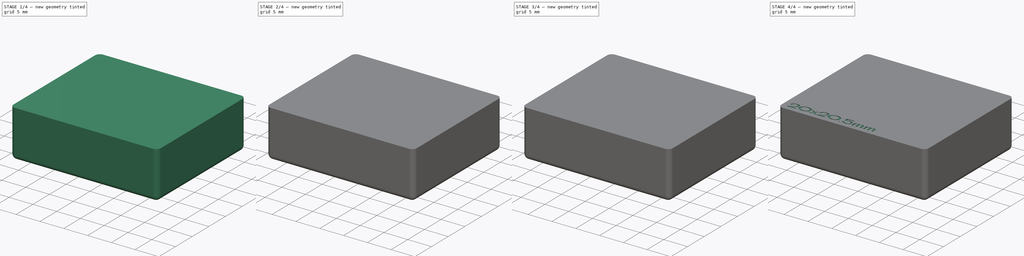
[diagram: build sequence overview — one tinted view per stage of 4, left to right]
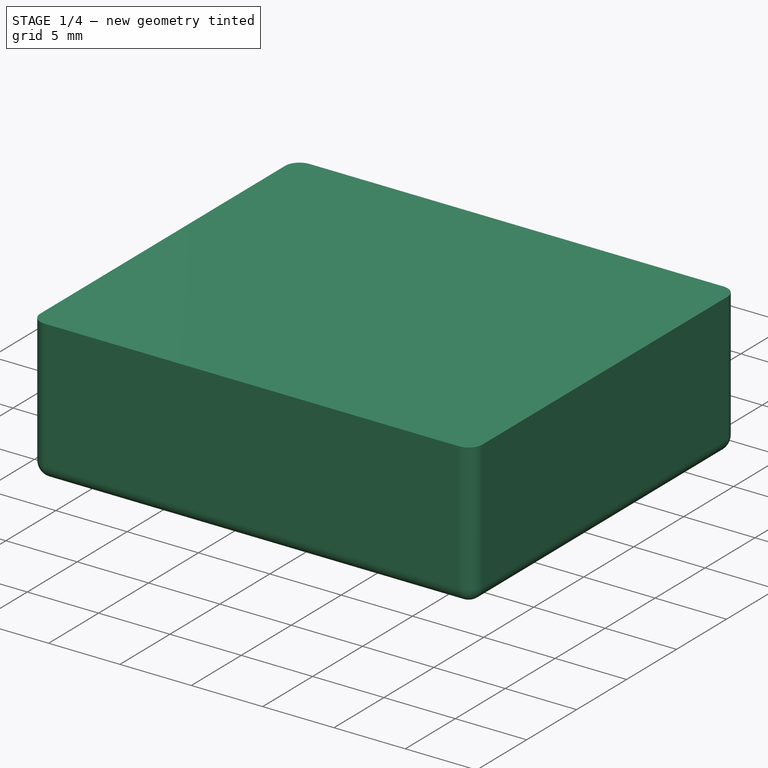
[diagram: stage 1 of 4 — iso view after this stage's code; geometry added in this stage tinted green]
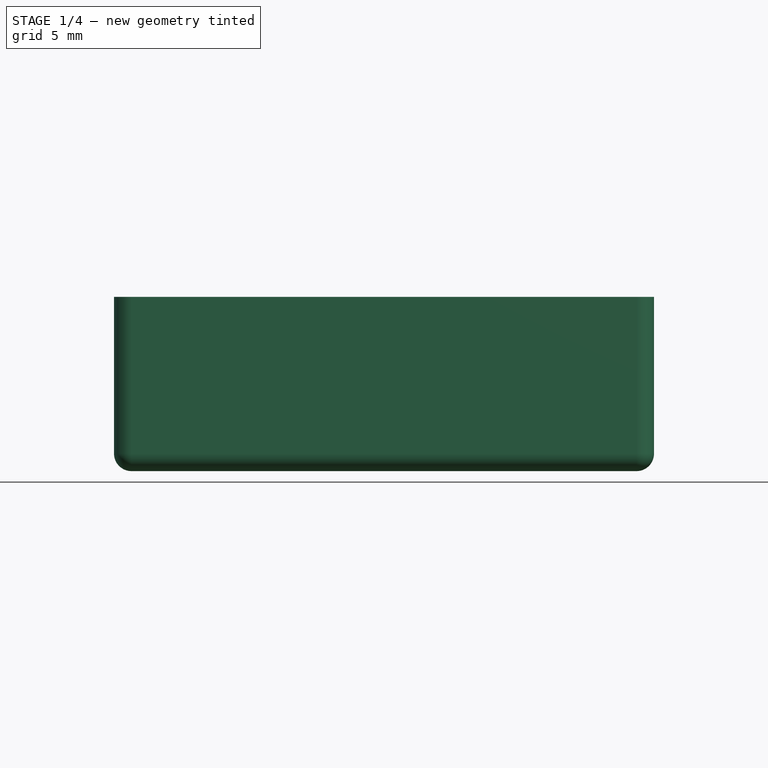
[diagram: stage 1 of 4 — front view after this stage's code; geometry added in this stage tinted green]
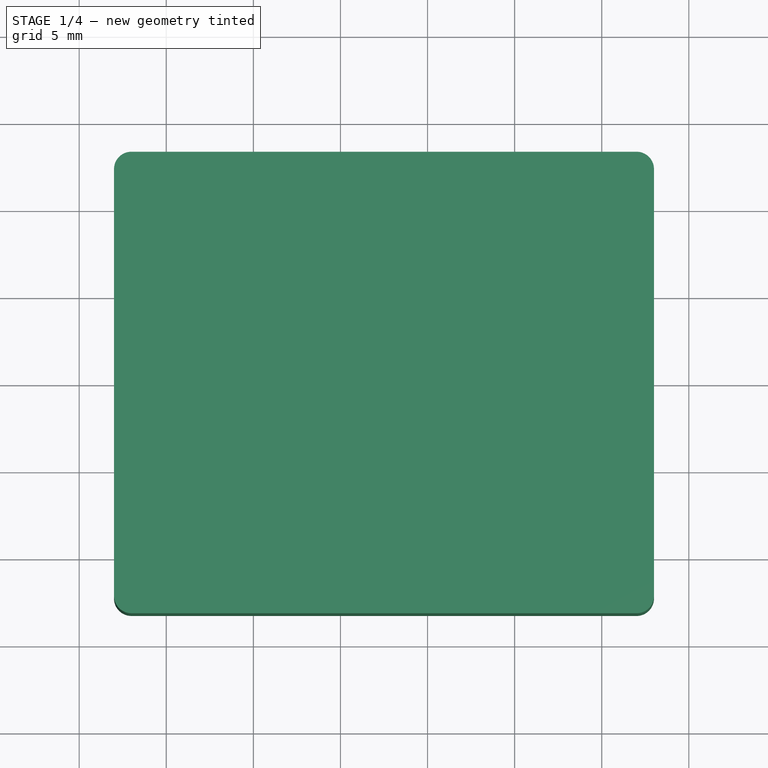
[diagram: stage 1 of 4 — top view after this stage's code; geometry added in this stage tinted green]
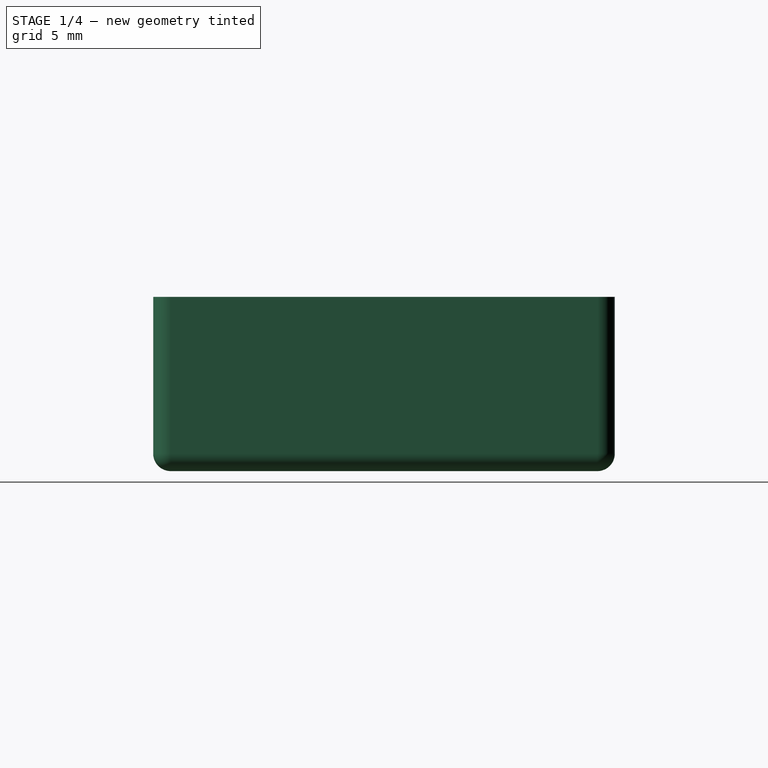
[diagram: stage 1 of 4 — right view after this stage's code; geometry added in this stage tinted green]
FCSTD DOCUMENT  (FreeCAD 0.16R6706 (Git))
Label: Mold_negative2
License: All rights reserved
LicenseURL: http://en.wikipedia.org/wiki/All_rights_reserved
objects: Part::Fillet×4, Sketcher::SketchObject×3, Part::Extrusion×3, Spreadsheet::Sheet×1, Part::MultiFuse×1, Part::Box×1, Part::Cut×1, Part::Part2DObjectPython×1, PartDesign::Pocket×1
note: 16 computed .brp shape members not serialized (recipe doc carries the construction recipe); baked Part::Feature solids carry a one-line shape summary decoded from their .brp

FEATURE [Sketcher::SketchObject] Sketch001
  expr: Constraints[11] = Spreadsheet.right_length + Spreadsheet.length / 2
  expr: Constraints[8] = Spreadsheet.right_width
  sketch-geometry (4):
    g0: LineSegment StartX=-10 StartY=6.75 StartZ=0 EndX=0 EndY=6.75 EndZ=0
    g1: LineSegment StartX=0 StartY=6.75 StartZ=0 EndX=0 EndY=-6.75 EndZ=0
    g2: LineSegment StartX=0 StartY=-6.75 StartZ=0 EndX=-10 EndY=-6.75 EndZ=0
    g3: LineSegment StartX=-10 StartY=-6.75 StartZ=0 EndX=-10 EndY=6.75 EndZ=0
  constraints (12):
    c: Coincident(g0,g1)
    c: Coincident(g1,g2)
    c: Coincident(g2,g3)
    c: Coincident(g3,g0)
    c: Horizontal(g0)
    c: Horizontal(g2)
    c: Vertical(g1)
    c: Vertical(g3)
    c: DistanceY(g2,g0) = 13.5
    c: Symmetric(g2,g0,g-1)
    c: DistanceX(g0,g-1) = 0
    c: DistanceX(g2,g1) = 10
FEATURE [Part::Extrusion] Extrude001
  Base = -> Sketch001
  Dir = (0,0,8)
  Solid = true
  TaperAngle = -5
  expr: TaperAngle = Spreadsheet.taper
  expr: Dir.z = Spreadsheet.height
FEATURE [Part::Box] Box  label="Cube"
  Height = 10
  Length = 31
  Placement = pos=(-13,-13.25,0) rot=(0,0,1;0rad)
  Width = 26.5
  expr: Placement.Base.y = -data.width / 2 - data.wall_thickness
  expr: Placement.Base.x = -data.length / 2 - data.wall_thickness
  expr: Height = data.height + 2
  expr: Width = data.width + 2 * data.wall_thickness
  expr: Length = data.length + data.left_length + 2 * data.wall_thickness
FEATURE [Part::Fillet] Fillet003
  Base = -> Box
  Edges = 8 edges r=1: [Edge1,Edge3,Edge4,Edge5,Edge7,Edge8,Edge9,Edge11]
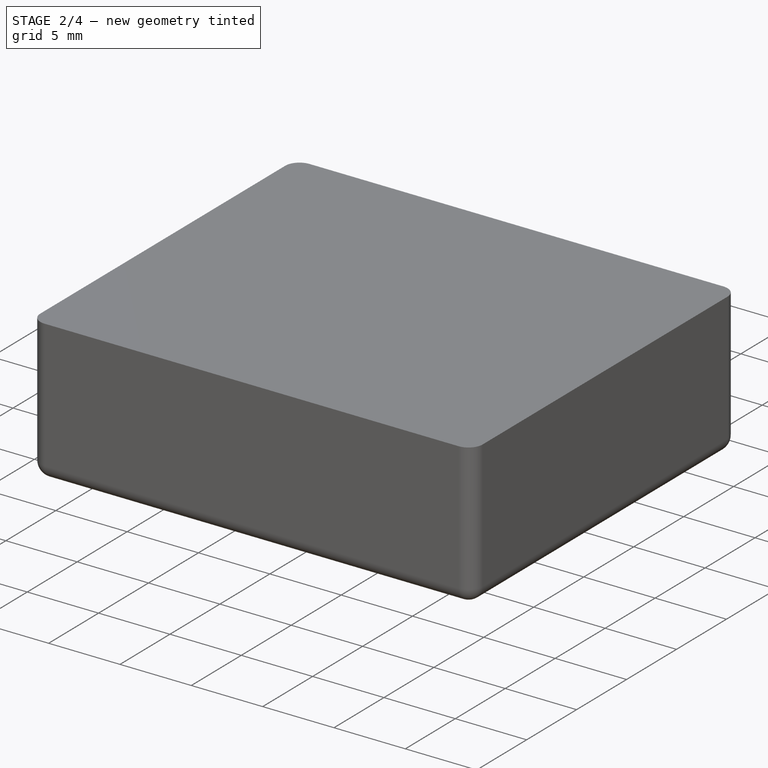
[diagram: stage 2 of 4 — iso view after this stage's code; geometry added in this stage tinted green]
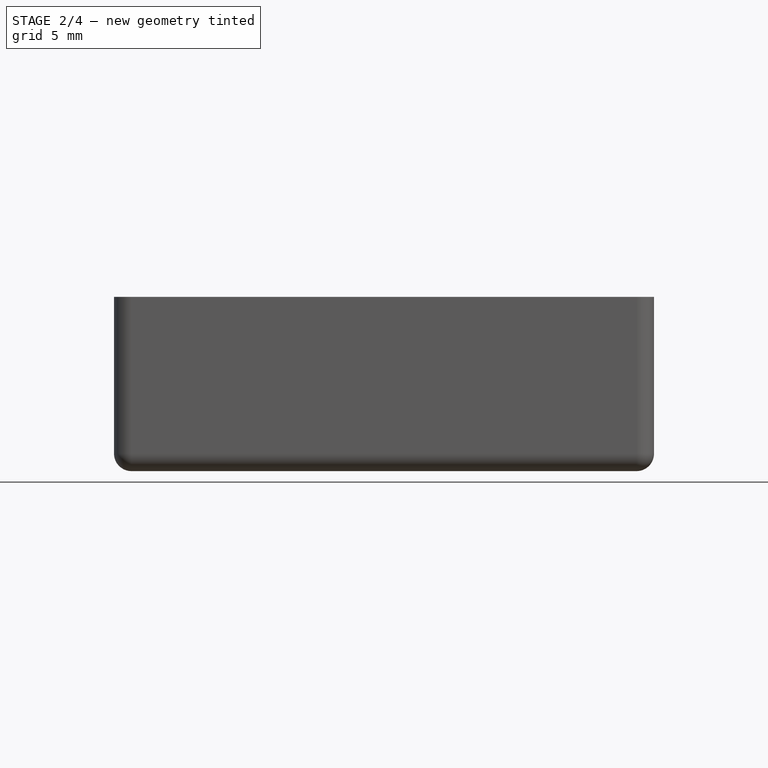
[diagram: stage 2 of 4 — front view after this stage's code; geometry added in this stage tinted green]
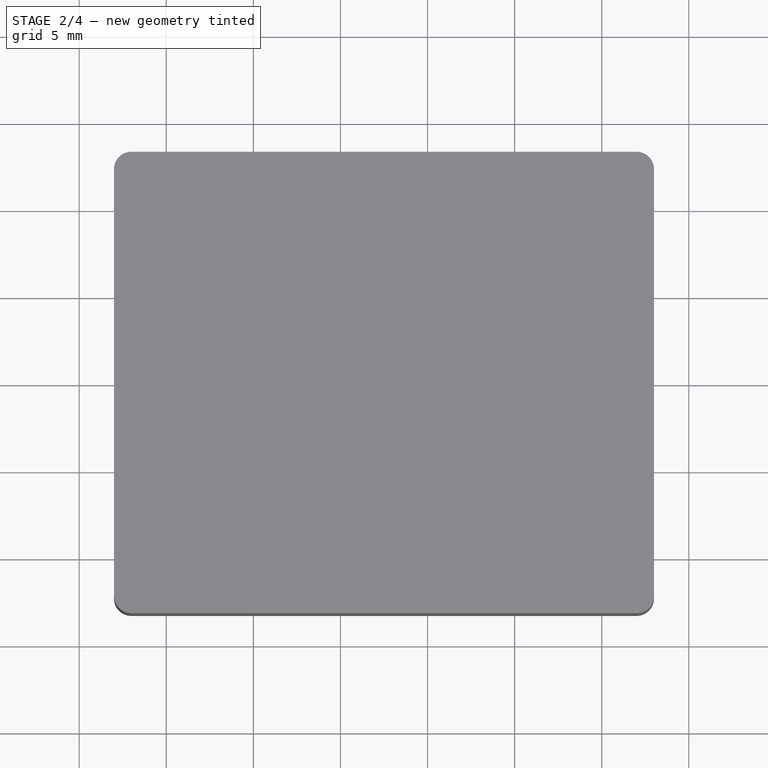
[diagram: stage 2 of 4 — top view after this stage's code; geometry added in this stage tinted green]
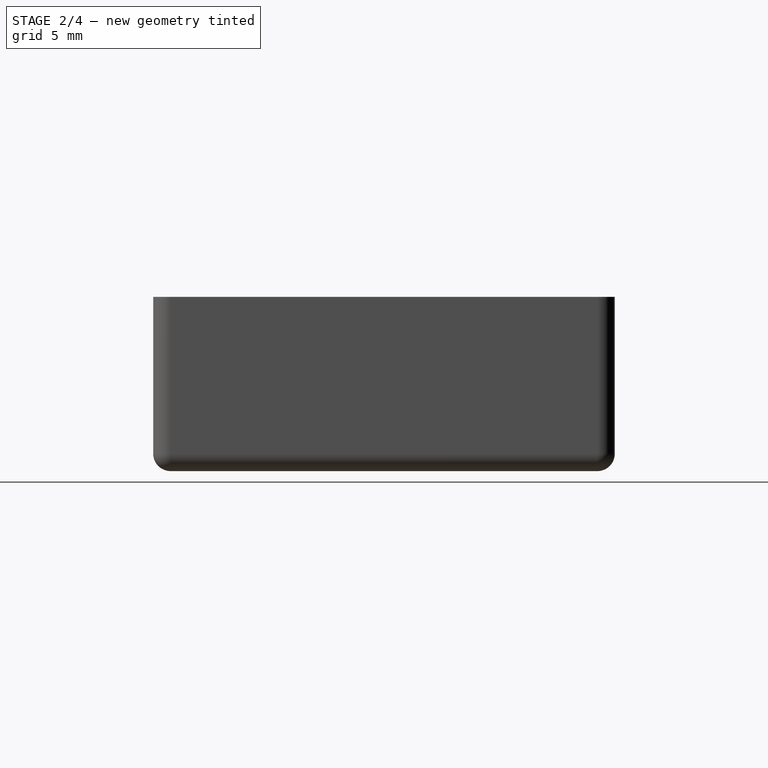
[diagram: stage 2 of 4 — right view after this stage's code; geometry added in this stage tinted green]
FEATURE [Sketcher::SketchObject] Sketch
  expr: Constraints[9] = Spreadsheet.width
  expr: Constraints[8] = Spreadsheet.length
  sketch-geometry (4):
    g0: LineSegment StartX=-10 StartY=10.25 StartZ=0 EndX=10 EndY=10.25 EndZ=0
    g1: LineSegment StartX=10 StartY=10.25 StartZ=0 EndX=10 EndY=-10.25 EndZ=0
    g2: LineSegment StartX=10 StartY=-10.25 StartZ=0 EndX=-10 EndY=-10.25 EndZ=0
    g3: LineSegment StartX=-10 StartY=-10.25 StartZ=0 EndX=-10 EndY=10.25 EndZ=0
  constraints (12):
    c: Coincident(g0,g1)
    c: Coincident(g1,g2)
    c: Coincident(g2,g3)
    c: Coincident(g3,g0)
    c: Horizontal(g0)
    c: Horizontal(g2)
    c: Vertical(g1)
    c: Vertical(g3)
    c: DistanceX(g0,g0) = 20
    c: DistanceY(g2,g0) = 20.5
    c: Symmetric(g0,g0,g-2)
    c: Symmetric(g0,g2,g-1)
FEATURE [Part::Extrusion] Extrude
  Base = -> Sketch
  Dir = (0,0,8)
  Solid = true
  TaperAngle = -5
  expr: TaperAngle = Spreadsheet.taper
  expr: Dir.z = Spreadsheet.height
FEATURE [Part::Fillet] Fillet001
  Base = -> Extrude
  Edges = 8 edges r=1: [Edge2,Edge3,Edge4,Edge6,Edge7,Edge9,Edge10,Edge12]
FEATURE [Part::Fillet] Fillet002
  Base = -> Extrude001
  Edges = 5 edges r=1: [Edge3,Edge4,Edge9,Edge10,Edge12]
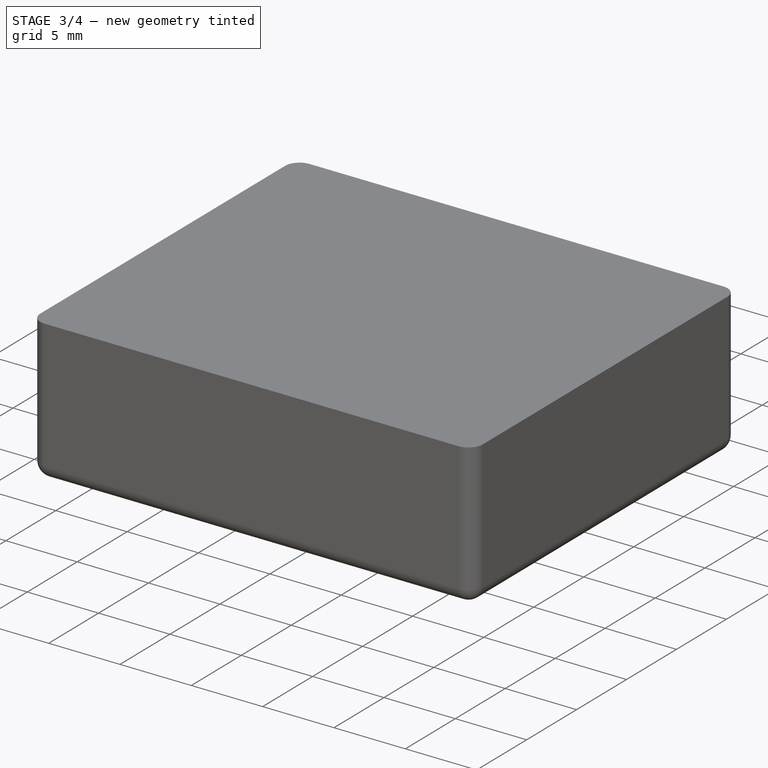
[diagram: stage 3 of 4 — iso view after this stage's code; geometry added in this stage tinted green]
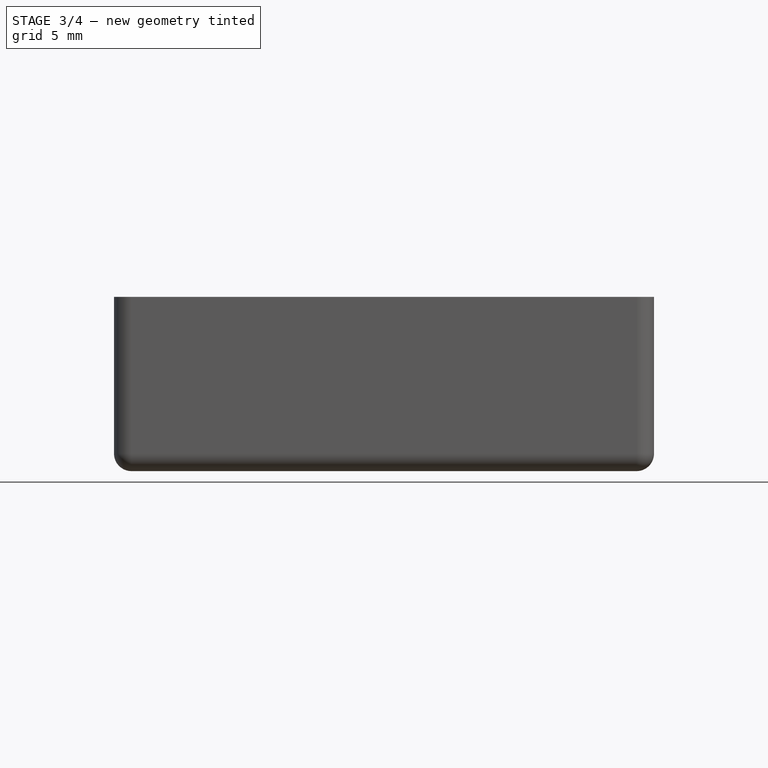
[diagram: stage 3 of 4 — front view after this stage's code; geometry added in this stage tinted green]
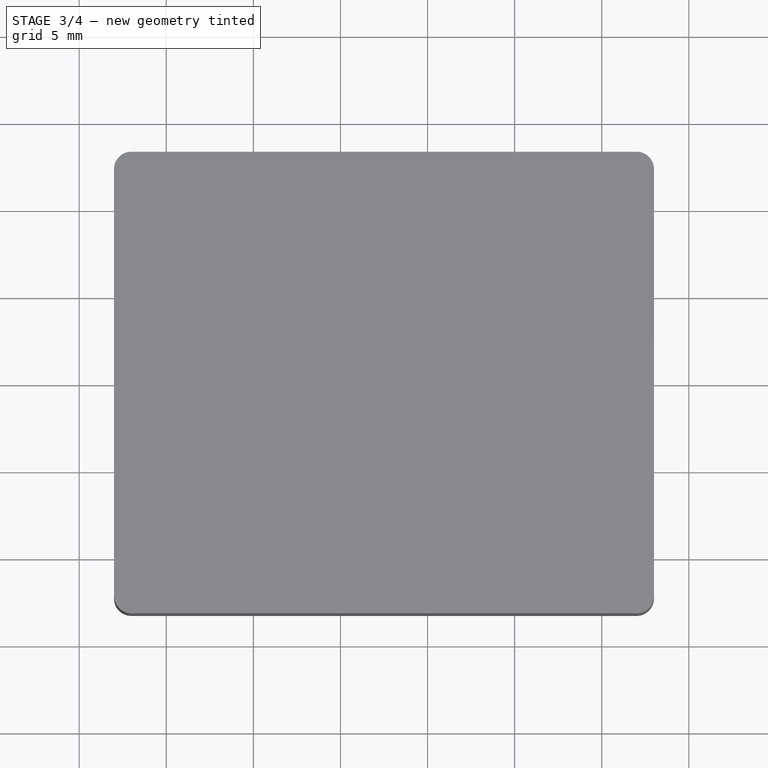
[diagram: stage 3 of 4 — top view after this stage's code; geometry added in this stage tinted green]
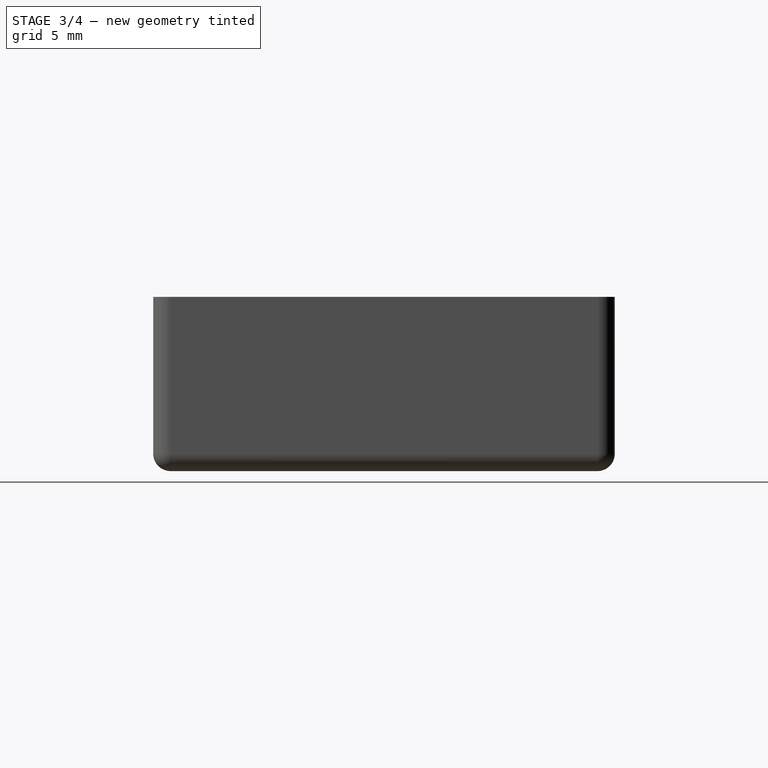
[diagram: stage 3 of 4 — right view after this stage's code; geometry added in this stage tinted green]
FEATURE [Sketcher::SketchObject] Sketch002
  expr: Constraints[11] = Spreadsheet.left_length + Spreadsheet.length / 2
  expr: Constraints[10] = Spreadsheet.right_width
  sketch-geometry (4):
    g0: LineSegment StartX=0 StartY=6.75 StartZ=0 EndX=15 EndY=6.75 EndZ=0
    g1: LineSegment StartX=15 StartY=6.75 StartZ=0 EndX=15 EndY=-6.75 EndZ=0
    g2: LineSegment StartX=15 StartY=-6.75 StartZ=0 EndX=0 EndY=-6.75 EndZ=0
    g3: LineSegment StartX=0 StartY=-6.75 StartZ=0 EndX=0 EndY=6.75 EndZ=0
  constraints (12):
    c: Coincident(g0,g1)
    c: Coincident(g1,g2)
    c: Coincident(g2,g3)
    c: Coincident(g3,g0)
    c: Horizontal(g0)
    c: Horizontal(g2)
    c: Vertical(g1)
    c: Vertical(g3)
    c: PointOnObject(g0,g-2)
    c: Symmetric(g0,g1,g-1)
    c: DistanceY(g1,g0) = 13.5
    c: DistanceX(g0,g0) = 15
FEATURE [Part::Extrusion] Extrude004
  Base = -> Sketch002
  Dir = (0,0,8)
  Solid = true
  TaperAngle = -5
  expr: TaperAngle = Spreadsheet.taper
  expr: Dir.z = Spreadsheet.height
FEATURE [Spreadsheet::Sheet] Spreadsheet  label="data"
  cells = A1=taper; B1(taper)=-5; H1=-0.5; A2=height; B2(height)=8; D2=5; E2=5; G2=6; H2=10; A3=length; B3(length)==20mm; D3==27.5mm; E3==29mm; F3==29mm; G3==31mm; H3==26mm; I3==20mm; J3==20mm; K3==20mm; L3==26.5mm; M3==22.5mm; A4=width; B4(width)==20.5mm; D4==21.5mm; E4==21mm; F4==21mm; G4==22mm; H4==25.5mm; I4==22.5mm; J4==22.5mm; K4==20.5mm; L4==20.5mm; M4==18mm; A5=left_length; B5(left_length)==5mm; D5==4mm; E5==4mm; F5==4mm; G5==5mm; H5==5mm; I5==3mm; J5==3mm; K5==5mm; L5==5mm; M5==7mm; A6=left_width; B6(left_width)==13mm; D6==14.5mm; E6==13mm; F6==13mm; G6==13.5mm; H6==13.5mm; I6==12.5mm; J6==12.5mm; K6==13mm; L6==11.5mm; M6==11.5mm; A7=right_length; B7(right_length)==0mm; D7==4mm; E7==0mm; F7==4mm; G7==5mm; H7==0mm; I7==0mm; J7==0mm; K7==0mm; L7==0mm; A8=right_width; B8(right_width)==13.5mm; D8==14.5mm; E8==13mm; F8==13mm; G8==13.5mm; A9=hole_offset; B9(hole_offset)==27mm; D9==27mm; E9==27mm; F9==17mm; G9==27mm; A10=wall_thickness; B10(wall_thickness)==3mm; D10=Boss 302; E10=Kia wo; F10=Kia w; G10=Grand Cross; H10=Urus; I10=Charger; J10=Impala; K10=84 Audi Quattro; L10=Demon; M10=55 Nomad; C11=volume; D11=3.48; E11=3.31; F11=3.51; G11=5.82; C12=density; D12=7.28; E12=7.28; F12=7.28; G12=7.28; C13=mass; D13==D12 * D11; E13==E12 * E11; F13==F12 * F11; G13==G12 * G11; E15=3.11; D16=34.9g stock; E16=7.28; D17==60 - 34.9; E17==E16 * E15; D18==25 - 16.5
FEATURE [Part::Fillet] Fillet
  Base = -> Extrude004
  Edges = 5 edges r=1: [Edge2,Edge3,Edge6,Edge7,Edge10]
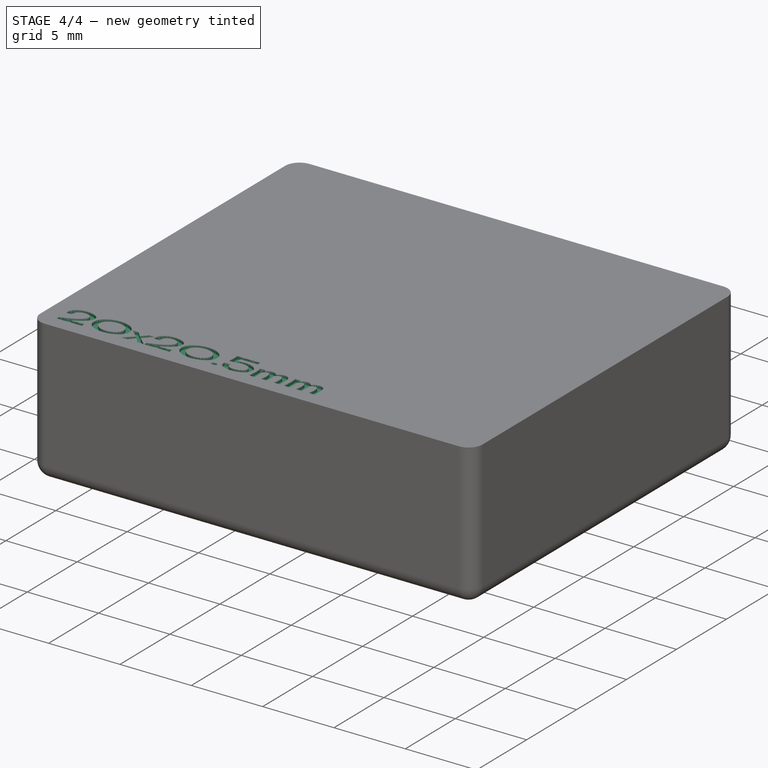
[diagram: stage 4 of 4 — iso view after this stage's code; geometry added in this stage tinted green]
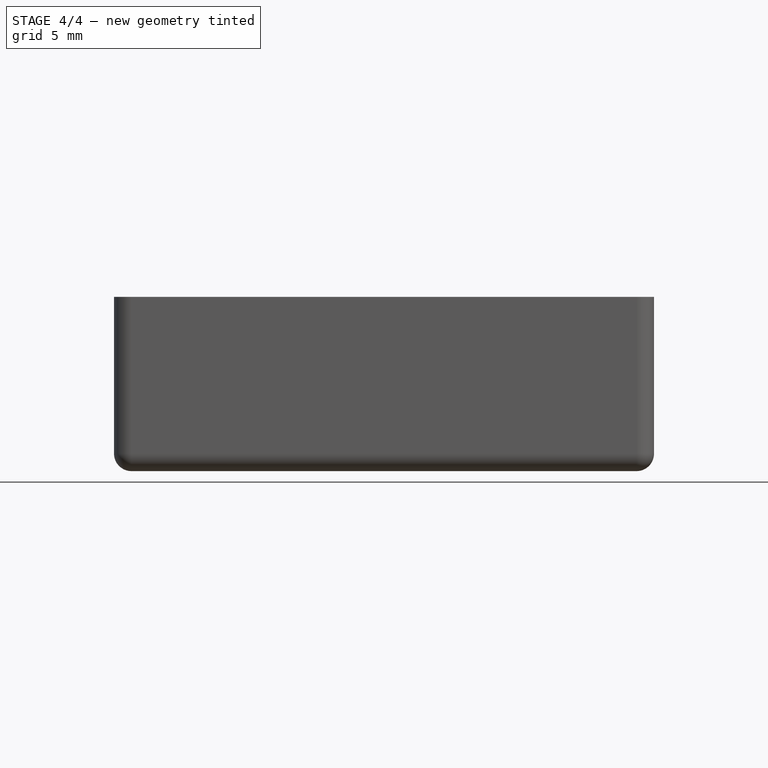
[diagram: stage 4 of 4 — front view after this stage's code; geometry added in this stage tinted green]
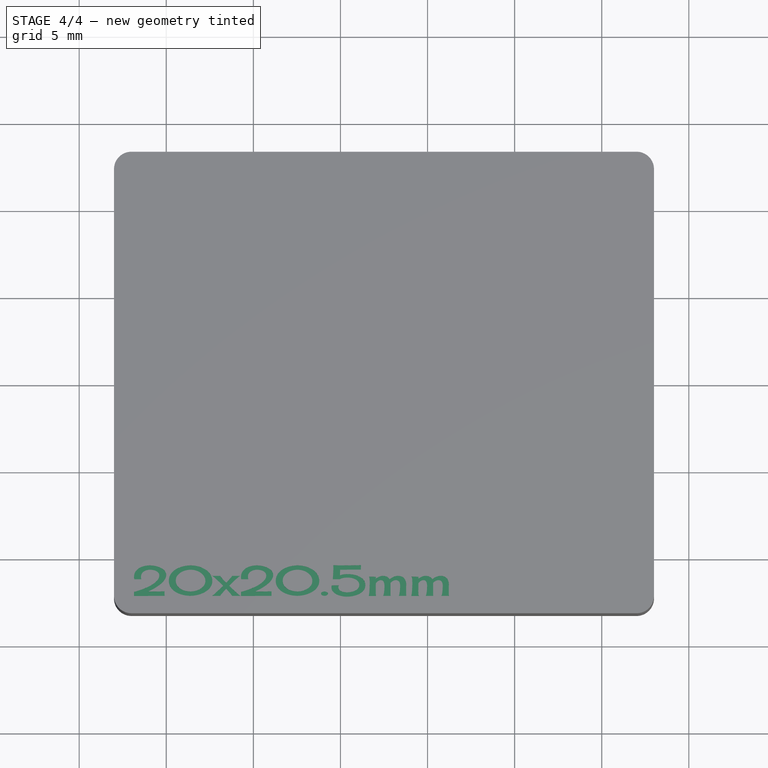
[diagram: stage 4 of 4 — top view after this stage's code; geometry added in this stage tinted green]
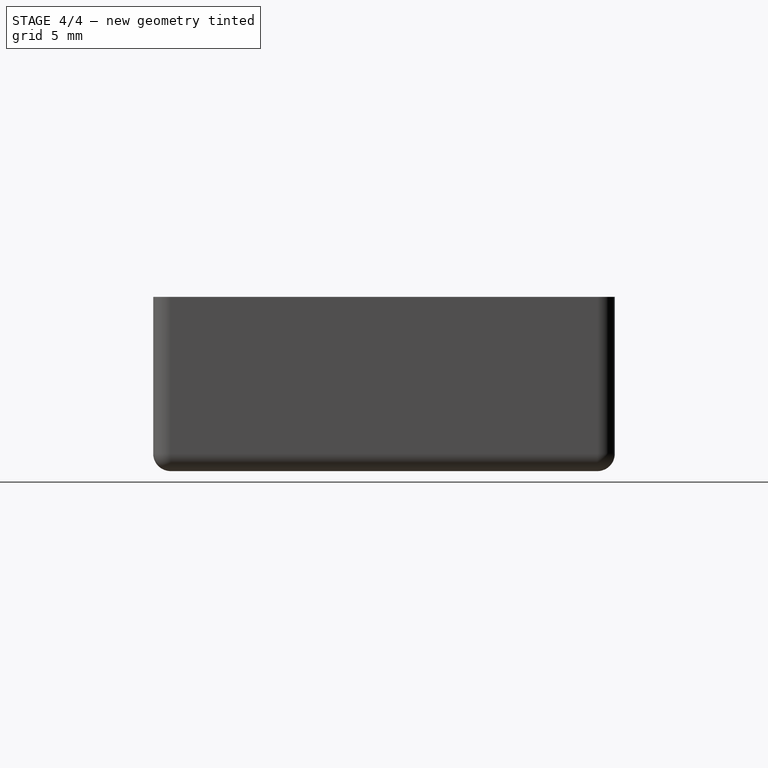
[diagram: stage 4 of 4 — right view after this stage's code; geometry added in this stage tinted green]
FEATURE [Part::MultiFuse] Fusion
  Shapes = -> [Fillet,Fillet001,Fillet002]
FEATURE [Part::Cut] Cut
  Base = -> Fillet003
  Tool = -> Fusion
FEATURE [Part::Part2DObjectPython] ShapeString  # Draft 2D object (typed FeaturePython)
  FontFile = <userpath>/Documents/git/KiCad/Inkscape/fonts/CherryCreamSoda-Regular.ttf
  Placement = pos=(-12,-12.25,10) rot=(0,0,1;0rad)
  Size = 1
  String = 20x20.5mm
  Support = -> Cut
  Tracking = 0
  expr: Placement.Base.y = -data.width / 2 - 2mm
  expr: Placement.Base.x = -data.length / 2 - 2mm
FEATURE [PartDesign::Pocket] Pocket
  Length = 0.2
  Sketch = -> ShapeString
  Type = 0
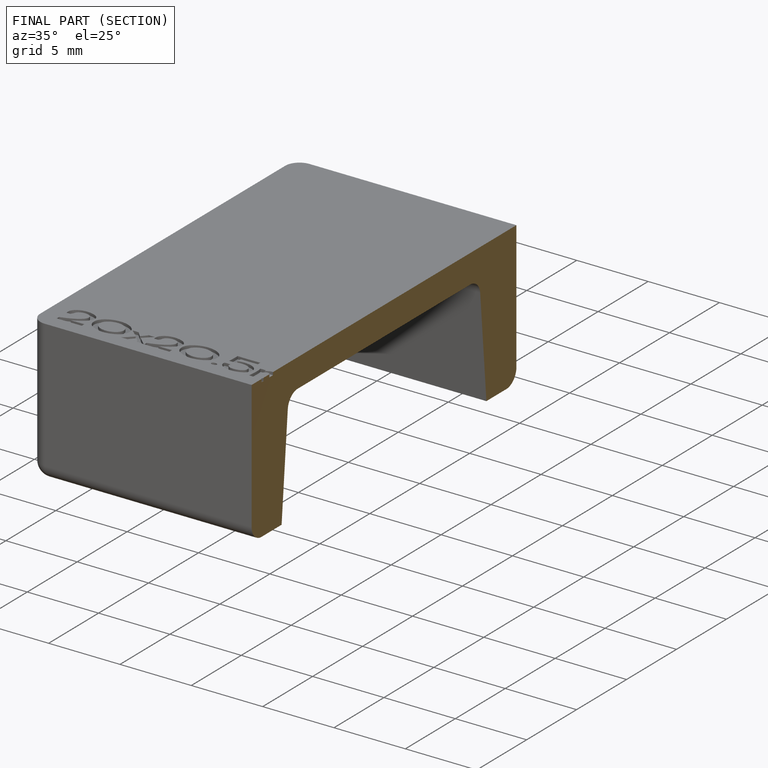
[diagram: finished part — half-section view (interior)]
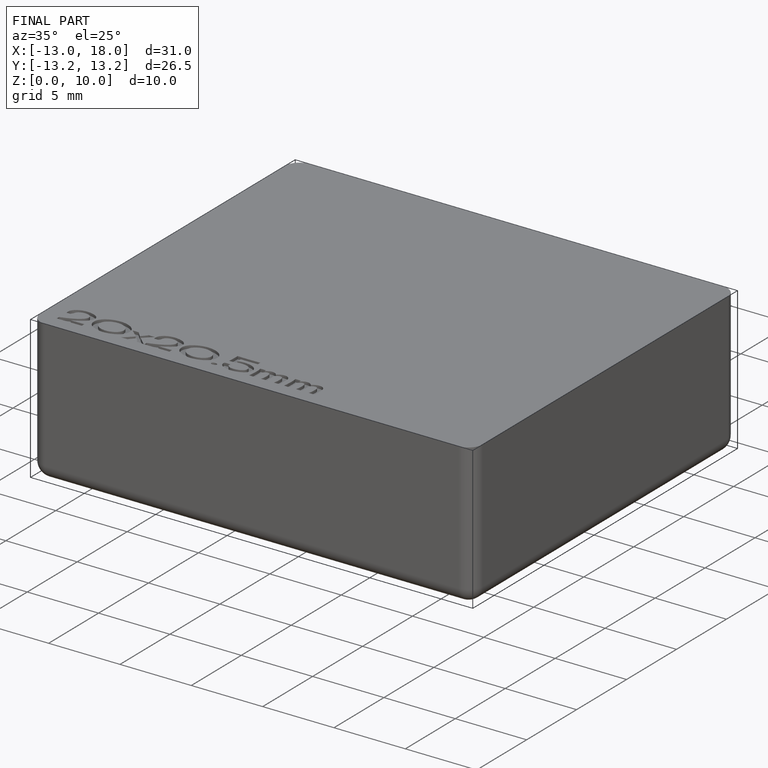
[diagram: finished part — iso view with bounding-box wireframe]
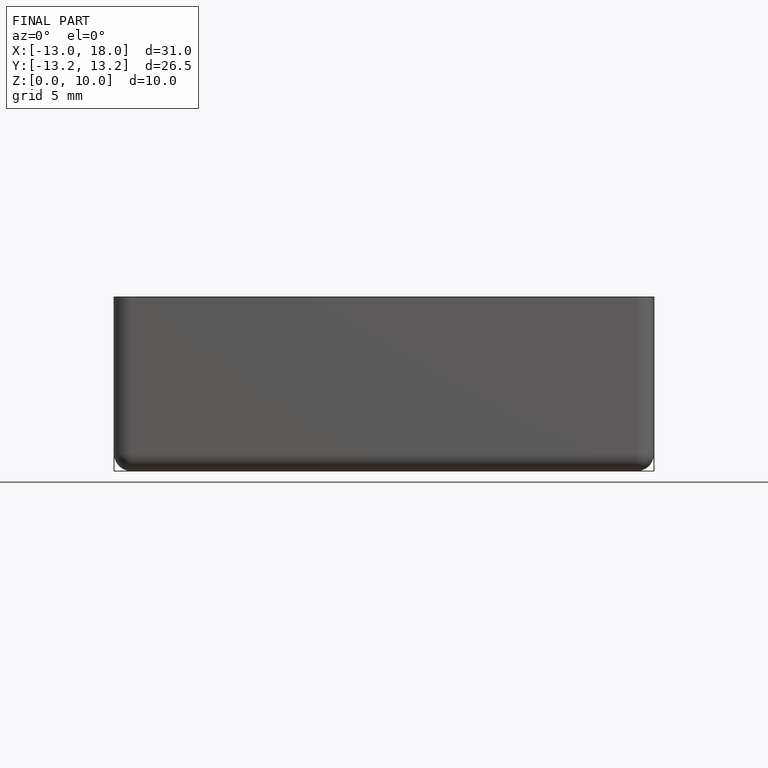
[diagram: finished part — front view with bounding-box wireframe]
